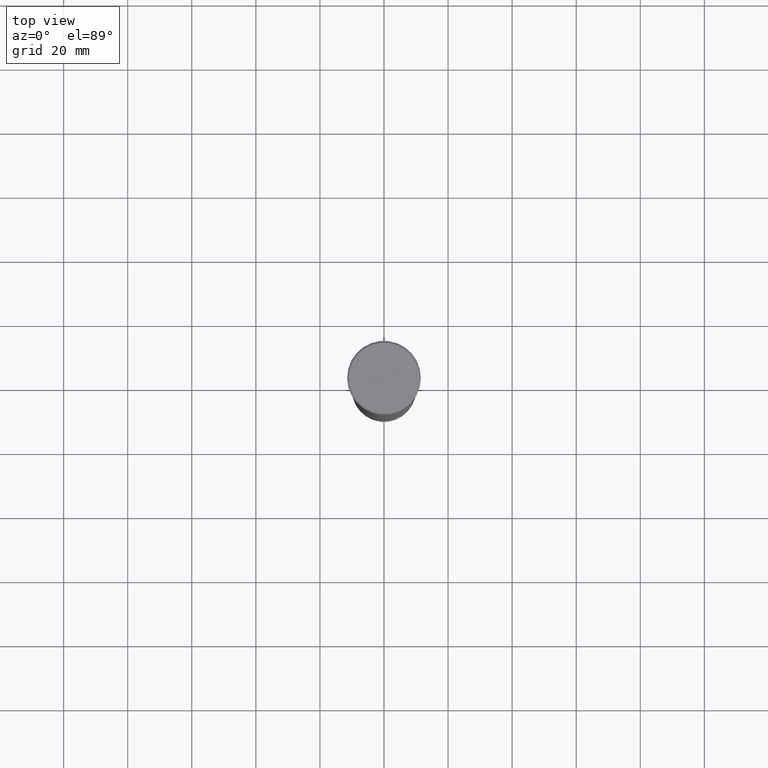
[diagram: clean part render]
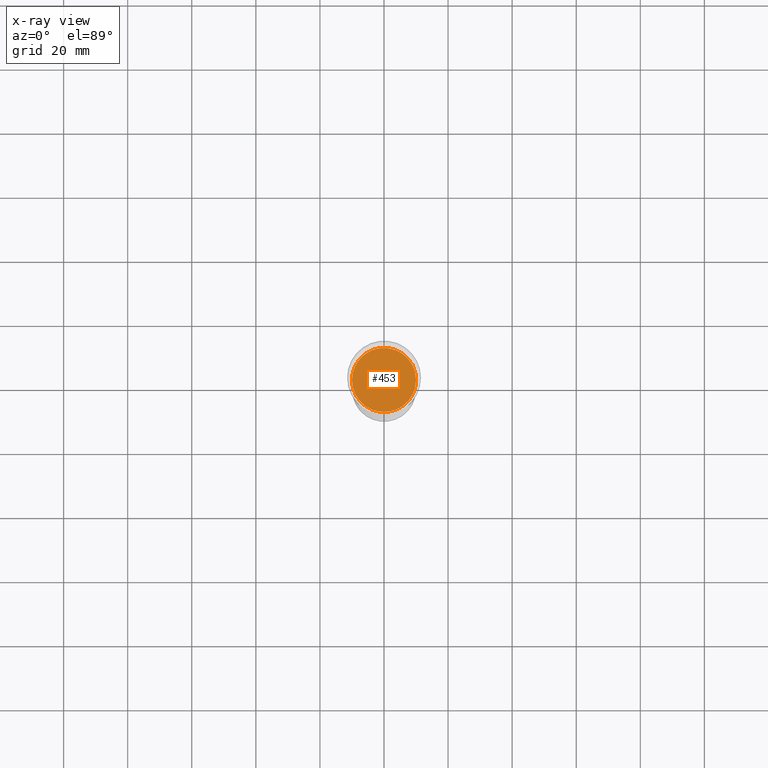
[diagram: x-ray — body ghosted, one internal face saturated and labeled with its STEP entity id]
A machine part, top view, then the same camera in x-ray: the body is ghosted and one INTERNAL B-rep face — a face not visible from any outside direction — is saturated and labeled: STEP entity #453.
In plain terms, the highlighted planar face has unit normal (0, 0, -1).
Its self-contained STEP definition (entity closure, byte-faithful):
#42 = AXIS2_PLACEMENT_3D ( 'NONE', #706, #267, #269 ) ;
#43 = DIRECTION ( 'NONE',  ( 0.000000000000000000, 0.000000000000000000, -1.000000000000000000 ) ) ;
#57 = AXIS2_PLACEMENT_3D ( 'NONE', #570, #43, #120 ) ;
#118 = EDGE_CURVE ( 'NONE', #214, #627, #893, .T. ) ;
#119 = CARTESIAN_POINT ( 'NONE',  ( -10.00000000000000178, 1.224646799147353454E-15, -41.99999999999999289 ) ) ;
#120 = DIRECTION ( 'NONE',  ( -1.000000000000000000, 0.000000000000000000, -0.000000000000000000 ) ) ;
#161 = DIRECTION ( 'NONE',  ( -0.000000000000000000, -0.000000000000000000, 1.000000000000000000 ) ) ;
#214 = VERTEX_POINT ( 'NONE', #271 ) ;
#253 = ORIENTED_EDGE ( 'NONE', *, *, #916, .T. ) ;
#267 = DIRECTION ( 'NONE',  ( -0.000000000000000000, -0.000000000000000000, 1.000000000000000000 ) ) ;
#269 = DIRECTION ( 'NONE',  ( 1.000000000000000000, 0.000000000000000000, 0.000000000000000000 ) ) ;
#271 = CARTESIAN_POINT ( 'NONE',  ( 10.00000000000000000, 0.000000000000000000, -41.99999999999999289 ) ) ;
#294 = PLANE ( 'NONE',  #57 ) ;
#317 = AXIS2_PLACEMENT_3D ( 'NONE', #779, #161, #974 ) ;
#453 = ADVANCED_FACE ( 'NONE', ( #503 ), #294, .F. ) ;
#503 = FACE_OUTER_BOUND ( 'NONE', #936, .T. ) ;
#570 = CARTESIAN_POINT ( 'NONE',  ( 0.000000000000000000, 0.000000000000000000, -41.99999999999999289 ) ) ;
#627 = VERTEX_POINT ( 'NONE', #119 ) ;
#706 = CARTESIAN_POINT ( 'NONE',  ( 0.000000000000000000, 0.000000000000000000, -41.99999999999999289 ) ) ;
#779 = CARTESIAN_POINT ( 'NONE',  ( 0.000000000000000000, 0.000000000000000000, -41.99999999999999289 ) ) ;
#893 = CIRCLE ( 'NONE', #317, 10.00000000000000000 ) ;
#916 = EDGE_CURVE ( 'NONE', #627, #214, #990, .T. ) ;
#936 = EDGE_LOOP ( 'NONE', ( #1149, #253 ) ) ;
#974 = DIRECTION ( 'NONE',  ( 1.000000000000000000, 0.000000000000000000, 0.000000000000000000 ) ) ;
#990 = CIRCLE ( 'NONE', #42, 10.00000000000000000 ) ;
#1149 = ORIENTED_EDGE ( 'NONE', *, *, #118, .T. ) ;